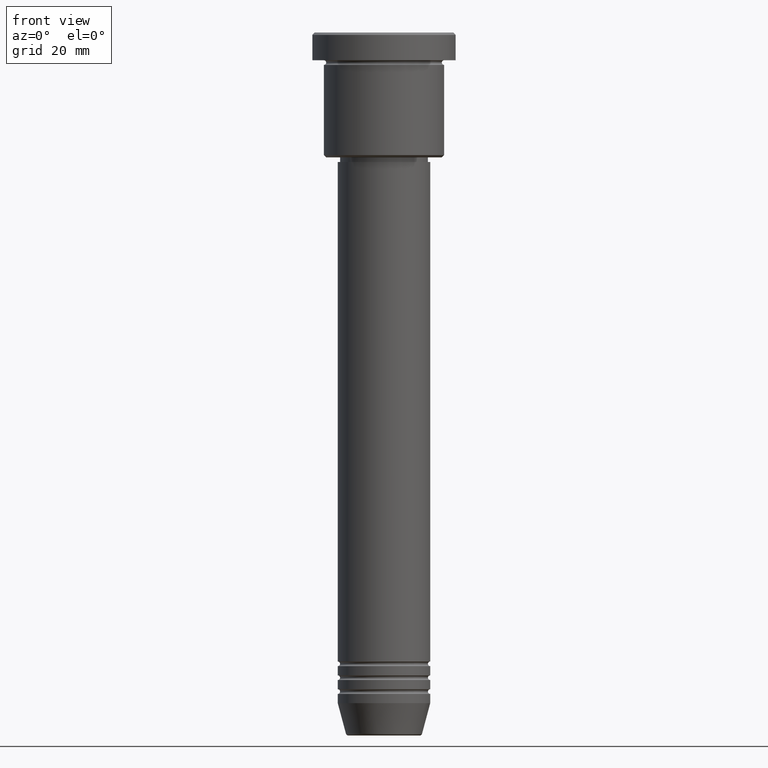
[diagram: clean part render]
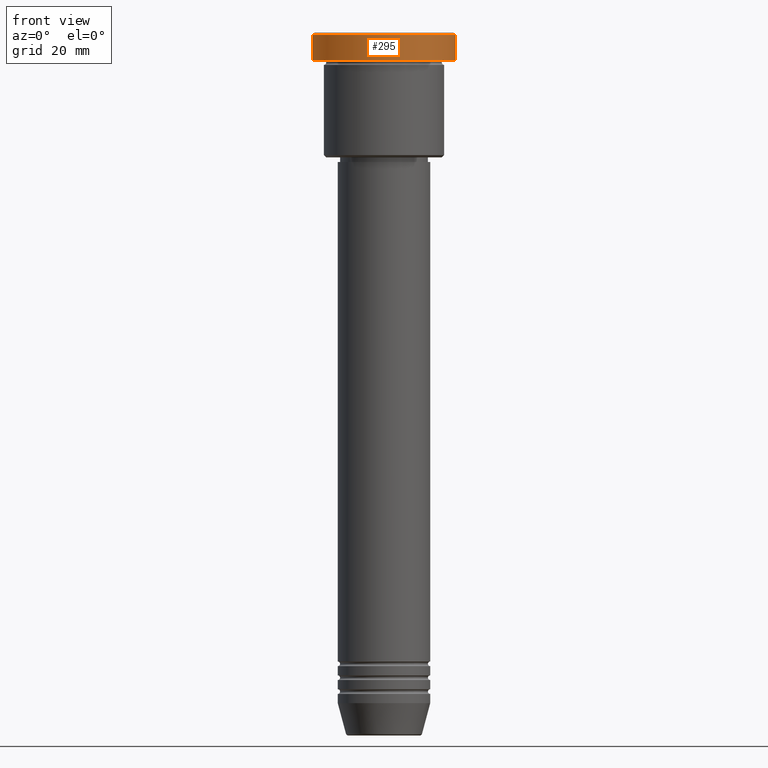
[diagram: same view with one face highlighted and labeled with its STEP entity id]
A machine part, front view. The second image highlights one B-rep face of the part: STEP entity #295.
In plain terms, the highlighted cylindrical surface (partial cylindrical patch) has radius 15.5 mm, axis along (-0, -0, 1).
Its self-contained STEP definition (entity closure, byte-faithful):
#29 = CIRCLE ( 'NONE', #436, 15.50000000000000000 ) ;
#68 = VERTEX_POINT ( 'NONE', #114 ) ;
#101 = EDGE_LOOP ( 'NONE', ( #716, #785, #722, #355 ) ) ;
#114 = CARTESIAN_POINT ( 'NONE',  ( 15.50000000000000000, 0.000000000000000000, -5.999999999999995559 ) ) ;
#165 = EDGE_CURVE ( 'NONE', #276, #68, #29, .T. ) ;
#205 = CARTESIAN_POINT ( 'NONE',  ( -15.50000000000000000, 1.898202538678397557E-15, -5.999999999999995559 ) ) ;
#216 = CARTESIAN_POINT ( 'NONE',  ( -15.50000000000000000, 1.898202538678397557E-15, -0.4999999999999987232 ) ) ;
#251 = AXIS2_PLACEMENT_3D ( 'NONE', #721, #269, #262 ) ;
#262 = DIRECTION ( 'NONE',  ( 1.000000000000000000, 0.000000000000000000, 0.000000000000000000 ) ) ;
#269 = DIRECTION ( 'NONE',  ( 0.000000000000000000, 0.000000000000000000, -1.000000000000000000 ) ) ;
#276 = VERTEX_POINT ( 'NONE', #205 ) ;
#295 = ADVANCED_FACE ( 'NONE', ( #947 ), #965, .T. ) ;
#298 = CARTESIAN_POINT ( 'NONE',  ( 15.50000000000000000, 0.000000000000000000, -0.4999999999999987232 ) ) ;
#307 = CIRCLE ( 'NONE', #251, 15.50000000000000000 ) ;
#315 = VERTEX_POINT ( 'NONE', #216 ) ;
#355 = ORIENTED_EDGE ( 'NONE', *, *, #761, .T. ) ;
#393 = CARTESIAN_POINT ( 'NONE',  ( 0.000000000000000000, 0.000000000000000000, -5.999999999999995559 ) ) ;
#434 = DIRECTION ( 'NONE',  ( -0.000000000000000000, -0.000000000000000000, 1.000000000000000000 ) ) ;
#436 = AXIS2_PLACEMENT_3D ( 'NONE', #393, #1089, #460 ) ;
#439 = VECTOR ( 'NONE', #945, 1000.000000000000000 ) ;
#460 = DIRECTION ( 'NONE',  ( 1.000000000000000000, 0.000000000000000000, 0.000000000000000000 ) ) ;
#574 = EDGE_CURVE ( 'NONE', #68, #820, #789, .T. ) ;
#581 = DIRECTION ( 'NONE',  ( -0.000000000000000000, -0.000000000000000000, 1.000000000000000000 ) ) ;
#678 = CARTESIAN_POINT ( 'NONE',  ( -15.50000000000000000, 1.898202538678397557E-15, 0.000000000000000000 ) ) ;
#716 = ORIENTED_EDGE ( 'NONE', *, *, #834, .F. ) ;
#721 = CARTESIAN_POINT ( 'NONE',  ( 0.000000000000000000, 0.000000000000000000, -0.4999999999999987232 ) ) ;
#722 = ORIENTED_EDGE ( 'NONE', *, *, #574, .T. ) ;
#749 = LINE ( 'NONE', #678, #439 ) ;
#761 = EDGE_CURVE ( 'NONE', #820, #315, #307, .T. ) ;
#785 = ORIENTED_EDGE ( 'NONE', *, *, #165, .T. ) ;
#789 = LINE ( 'NONE', #970, #1035 ) ;
#820 = VERTEX_POINT ( 'NONE', #298 ) ;
#834 = EDGE_CURVE ( 'NONE', #276, #315, #749, .T. ) ;
#945 = DIRECTION ( 'NONE',  ( -0.000000000000000000, -0.000000000000000000, 1.000000000000000000 ) ) ;
#947 = FACE_OUTER_BOUND ( 'NONE', #101, .T. ) ;
#965 = CYLINDRICAL_SURFACE ( 'NONE', #1033, 15.50000000000000000 ) ;
#970 = CARTESIAN_POINT ( 'NONE',  ( 15.50000000000000000, 0.000000000000000000, 0.000000000000000000 ) ) ;
#1033 = AXIS2_PLACEMENT_3D ( 'NONE', #1137, #581, #1131 ) ;
#1035 = VECTOR ( 'NONE', #434, 1000.000000000000000 ) ;
#1089 = DIRECTION ( 'NONE',  ( -0.000000000000000000, -0.000000000000000000, 1.000000000000000000 ) ) ;
#1131 = DIRECTION ( 'NONE',  ( 1.000000000000000000, 0.000000000000000000, 0.000000000000000000 ) ) ;
#1137 = CARTESIAN_POINT ( 'NONE',  ( 0.000000000000000000, 0.000000000000000000, 0.000000000000000000 ) ) ;